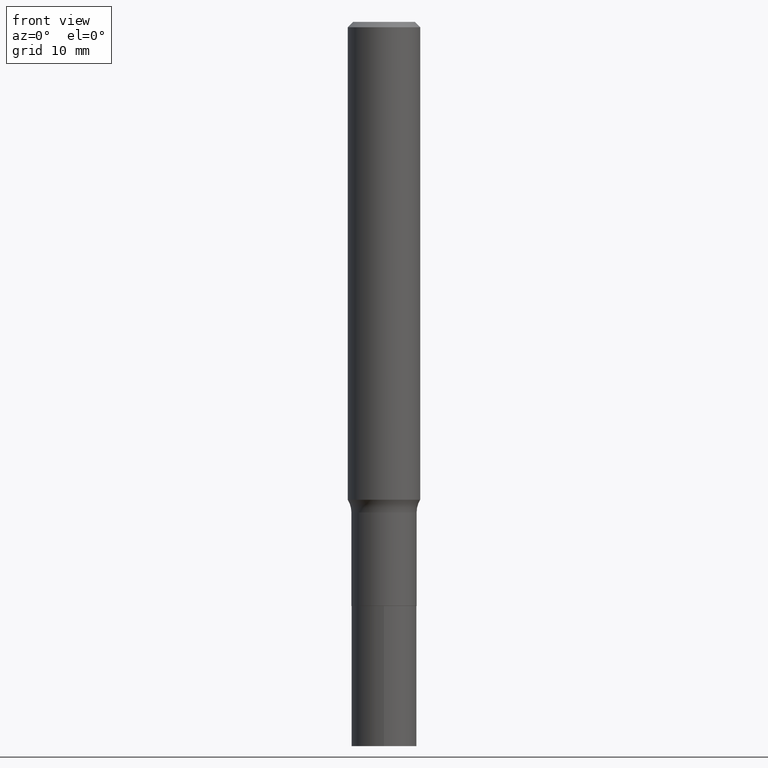
[diagram: clean part render]
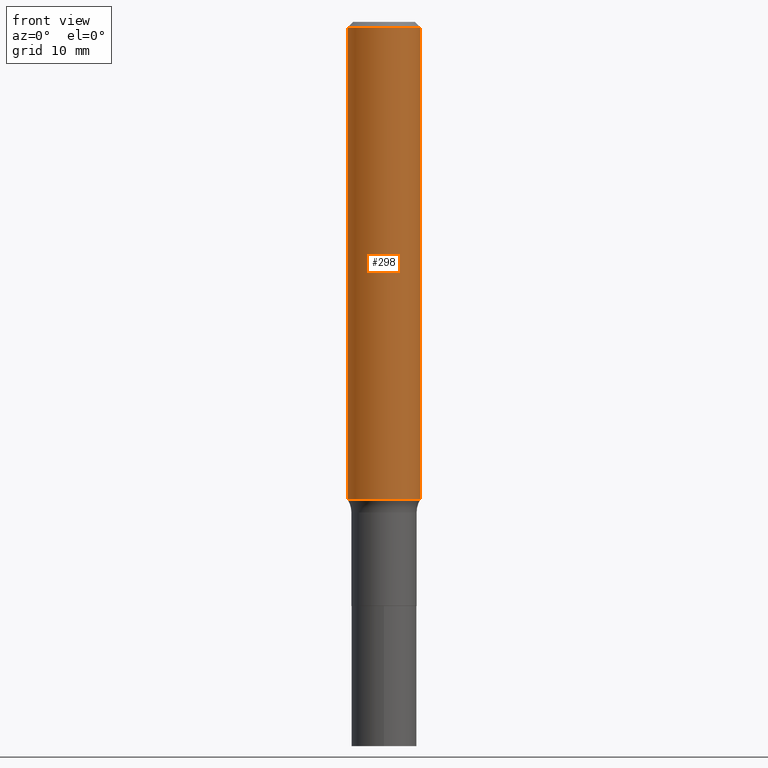
[diagram: same view with one face highlighted and labeled with its STEP entity id]
A machine part, front view. The second image highlights one B-rep face of the part: STEP entity #298.
In plain terms, the highlighted cylindrical surface (edge-blend (fillet) strip) has radius 2.9997 mm, axis along (-0, 0, 1).
Its self-contained STEP definition (entity closure, byte-faithful):
#14 = ORIENTED_EDGE ( 'NONE', *, *, #350, .T. ) ;
#21 = VERTEX_POINT ( 'NONE', #103 ) ;
#38 = DIRECTION ( 'NONE',  ( 1.000000000000000000, -6.982962677686268288E-15, 0.000000000000000000 ) ) ;
#60 = DIRECTION ( 'NONE',  ( -2.445468806185136597E-29, 3.491481338843145583E-15, 1.000000000000000000 ) ) ;
#62 = VECTOR ( 'NONE', #220, 39.37007874015748143 ) ;
#95 = CYLINDRICAL_SURFACE ( 'NONE', #458, 0.1181000000000001077 ) ;
#103 = CARTESIAN_POINT ( 'NONE',  ( 0.1180999999999999966, -8.865394841523547570E-16, -0.01771500000000011260 ) ) ;
#109 = AXIS2_PLACEMENT_3D ( 'NONE', #374, #208, #38 ) ;
#170 = CARTESIAN_POINT ( 'NONE',  ( 4.332147990156996744E-31, -6.185159191760671627E-17, -0.01771500000000011260 ) ) ;
#171 = ORIENTED_EDGE ( 'NONE', *, *, #428, .F. ) ;
#178 = CARTESIAN_POINT ( 'NONE',  ( 0.1181000000000001077, -8.246878922347488542E-16, 5.758764772215005345E-30 ) ) ;
#182 = LINE ( 'NONE', #178, #62 ) ;
#183 = DIRECTION ( 'NONE',  ( 1.000000000000000000, -6.982962677686266711E-15, 0.000000000000000000 ) ) ;
#200 = VERTEX_POINT ( 'NONE', #295 ) ;
#205 = AXIS2_PLACEMENT_3D ( 'NONE', #170, #427, #183 ) ;
#206 = DIRECTION ( 'NONE',  ( 1.000000000000000000, -6.982962677686266711E-15, 4.876176775795935793E-29 ) ) ;
#208 = DIRECTION ( 'NONE',  ( -2.445468806185136597E-29, 3.491481338843145583E-15, 1.000000000000000000 ) ) ;
#214 = CIRCLE ( 'NONE', #109, 0.1181000000000002048 ) ;
#220 = DIRECTION ( 'NONE',  ( -2.445468806185136877E-29, 3.491481338843145188E-15, 1.000000000000000000 ) ) ;
#223 = VECTOR ( 'NONE', #372, 39.37007874015748143 ) ;
#242 = CARTESIAN_POINT ( 'NONE',  ( 0.000000000000000000, 0.000000000000000000, 0.000000000000000000 ) ) ;
#254 = LINE ( 'NONE', #403, #223 ) ;
#280 = VERTEX_POINT ( 'NONE', #284 ) ;
#284 = CARTESIAN_POINT ( 'NONE',  ( -0.1181000000000002187, -4.602259227975794853E-15, -1.558481822134387462 ) ) ;
#295 = CARTESIAN_POINT ( 'NONE',  ( 0.1181000000000002187, -6.266098091143226046E-15, -1.558481822134387462 ) ) ;
#298 = ADVANCED_FACE ( 'NONE', ( #325 ), #95, .T. ) ;
#307 = ORIENTED_EDGE ( 'NONE', *, *, #369, .F. ) ;
#325 = FACE_OUTER_BOUND ( 'NONE', #392, .T. ) ;
#347 = CIRCLE ( 'NONE', #205, 0.1180999999999999966 ) ;
#350 = EDGE_CURVE ( 'NONE', #200, #21, #182, .T. ) ;
#369 = EDGE_CURVE ( 'NONE', #280, #407, #254, .T. ) ;
#372 = DIRECTION ( 'NONE',  ( -2.445468806185136877E-29, 3.491481338843145188E-15, 1.000000000000000000 ) ) ;
#374 = CARTESIAN_POINT ( 'NONE',  ( 3.811218681036217302E-29, -5.441410198908476994E-15, -1.558481822134387462 ) ) ;
#392 = EDGE_LOOP ( 'NONE', ( #307, #421, #14, #171 ) ) ;
#393 = CARTESIAN_POINT ( 'NONE',  ( -0.1180999999999999966, -1.912479924480361427E-15, -0.01771500000000011260 ) ) ;
#403 = CARTESIAN_POINT ( 'NONE',  ( -0.1181000000000001077, 8.391509709326790846E-16, -5.809262341591049389E-30 ) ) ;
#407 = VERTEX_POINT ( 'NONE', #393 ) ;
#421 = ORIENTED_EDGE ( 'NONE', *, *, #429, .T. ) ;
#427 = DIRECTION ( 'NONE',  ( -2.445468806185136597E-29, 3.491481338843145583E-15, 1.000000000000000000 ) ) ;
#428 = EDGE_CURVE ( 'NONE', #407, #21, #347, .T. ) ;
#429 = EDGE_CURVE ( 'NONE', #280, #200, #214, .T. ) ;
#458 = AXIS2_PLACEMENT_3D ( 'NONE', #242, #60, #206 ) ;